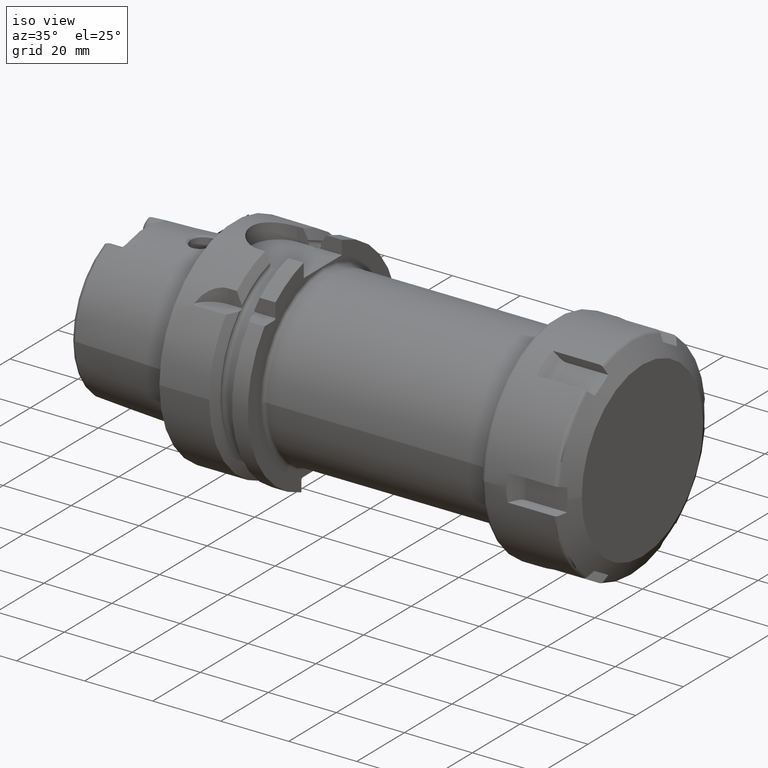
[diagram: clean part render]
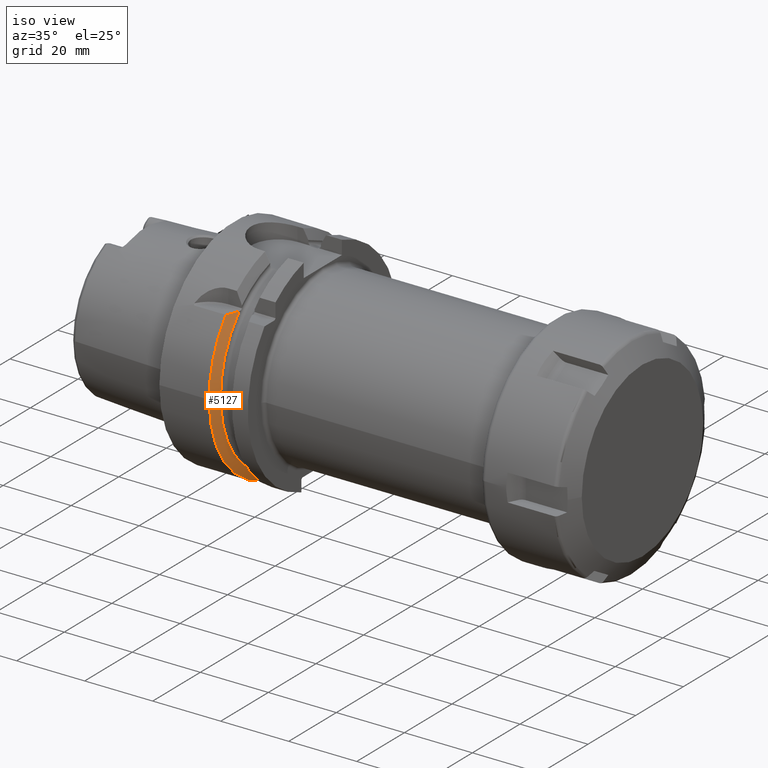
[diagram: same view with one face highlighted and labeled with its STEP entity id]
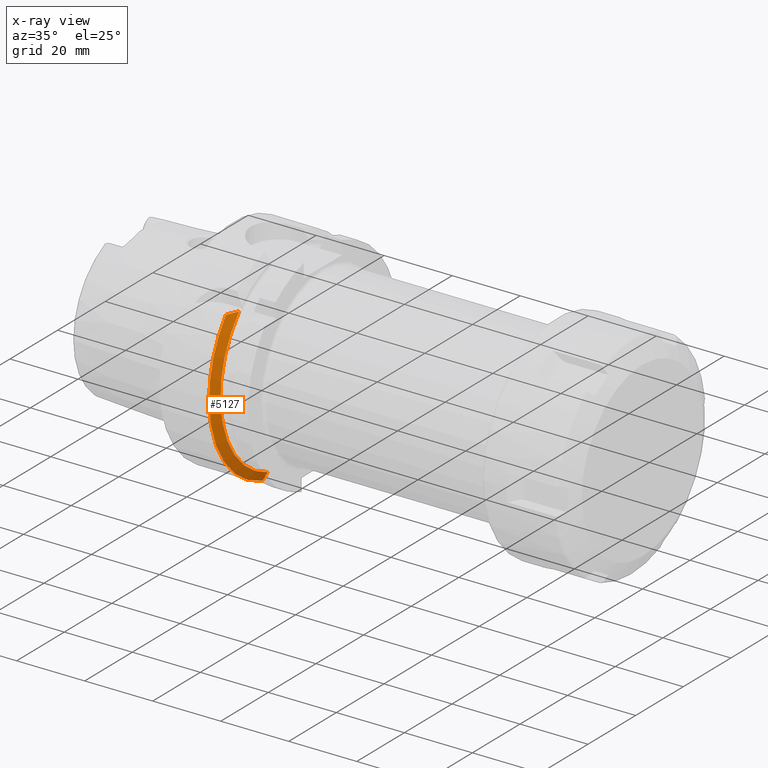
[diagram: x-ray of the same camera — body ghosted, the highlighted face saturated]
A machine part, iso view. The second image highlights one B-rep face of the part: STEP entity #5127.
The next image is the same camera in x-ray: the body ghosted, the highlighted face saturated — about 1% of this face is hidden behind the body in this view.
In plain terms, the highlighted conical surface has half-angle 60 deg.
Its self-contained STEP definition (entity closure, byte-faithful):
#1106=CARTESIAN_POINT('',(1.462250092524E1,0.E0,0.E0));
#1107=DIRECTION('',(1.E0,0.E0,0.E0));
#1108=DIRECTION('',(0.E0,-7.764663384879E-1,6.301587301587E-1));
#1109=AXIS2_PLACEMENT_3D('',#1106,#1107,#1108);
#1667=CARTESIAN_POINT('',(1.462250092524E1,0.E0,0.E0));
#1668=DIRECTION('',(1.E0,0.E0,0.E0));
#1669=DIRECTION('',(0.E0,-1.E0,0.E0));
#1670=AXIS2_PLACEMENT_3D('',#1667,#1668,#1669);
#1918=CARTESIAN_POINT('',(1.6125E1,-2.100115501712E1,1.985E1));
#1919=CARTESIAN_POINT('',(1.597384221917E1,-2.136140971936E1,1.985E1));
#1920=CARTESIAN_POINT('',(1.566115300621E1,-2.209786160622E1,1.985E1));
#1921=CARTESIAN_POINT('',(1.516255881786E1,-2.324577082409E1,1.985E1));
#1922=CARTESIAN_POINT('',(1.480632619355E1,-2.404863363206E1,1.985E1));
#1923=CARTESIAN_POINT('',(1.462250092524E1,-2.445868966237E1,1.985E1));
#1925=CARTESIAN_POINT('',(1.6125E1,0.E0,0.E0));
#1926=DIRECTION('',(1.E0,0.E0,0.E0));
#1927=DIRECTION('',(0.E0,-7.267440361428E-1,6.869083679290E-1));
#1928=AXIS2_PLACEMENT_3D('',#1925,#1926,#1927);
#1930=CARTESIAN_POINT('',(1.6125E1,-9.0175E0,-2.745461174016E1));
#1931=CARTESIAN_POINT('',(1.596600098125E1,-9.0175E0,-2.774448053791E1));
#1932=CARTESIAN_POINT('',(1.564270948849E1,-9.0175E0,-2.833297398512E1));
#1933=CARTESIAN_POINT('',(1.514210518984E1,-9.0175E0,-2.924158789478E1));
#1934=CARTESIAN_POINT('',(1.479749126019E1,-9.0175E0,-2.986536377611E1));
#1935=CARTESIAN_POINT('',(1.462250092524E1,-9.0175E0,-3.018169467989E1));
#2813=CARTESIAN_POINT('',(1.462250092524E1,-3.15E1,0.E0));
#2814=VERTEX_POINT('',#2813);
#2973=CARTESIAN_POINT('',(1.462250092524E1,-9.0175E0,-3.018169467989E1));
#2974=VERTEX_POINT('',#2973);
#2979=CARTESIAN_POINT('',(1.6125E1,-9.0175E0,-2.745461174016E1));
#2981=VERTEX_POINT('',#2979);
#3015=CARTESIAN_POINT('',(1.6125E1,-2.100115501712E1,1.985E1));
#3017=VERTEX_POINT('',#3015);
#3031=VERTEX_POINT('',#1923);
#5115=CARTESIAN_POINT('',(1.537375046262E1,0.E0,0.E0));
#5116=DIRECTION('',(-1.E0,0.E0,0.E0));
#5117=DIRECTION('',(0.E0,1.E0,0.E0));
#5118=AXIS2_PLACEMENT_3D('',#5115,#5116,#5117);
#5119=CONICAL_SURFACE('',#5118,3.019879763210E1,6.E1);
#5120=ORIENTED_EDGE('',*,*,#4880,.F.);
#5121=ORIENTED_EDGE('',*,*,#4698,.T.);
#5122=ORIENTED_EDGE('',*,*,#5032,.T.);
#5123=ORIENTED_EDGE('',*,*,#4814,.F.);
#5124=ORIENTED_EDGE('',*,*,#4335,.F.);
#5125=EDGE_LOOP('',(#5120,#5121,#5122,#5123,#5124));
#5126=FACE_OUTER_BOUND('',#5125,.F.);
#5127=ADVANCED_FACE('',(#5126),#5119,.T.);
#1110=CIRCLE('',#1109,3.15E1);
#1671=CIRCLE('',#1670,3.15E1);
#1924=B_SPLINE_CURVE_WITH_KNOTS('',3,(#1918,#1919,#1920,#1921,#1922,#1923),
.UNSPECIFIED.,.F.,.F.,(4,1,1,4),(0.E0,3.333333333333E-1,6.666666666667E-1,1.E0),
.UNSPECIFIED.);
#1929=CIRCLE('',#1928,2.889759526419E1);
#1936=B_SPLINE_CURVE_WITH_KNOTS('',3,(#1930,#1931,#1932,#1933,#1934,#1935),
.UNSPECIFIED.,.F.,.F.,(4,1,1,4),(0.E0,3.333333333333E-1,6.666666666667E-1,1.E0),
.UNSPECIFIED.);
#4335=EDGE_CURVE('',#3031,#2814,#1110,.T.);
#4698=EDGE_CURVE('',#3017,#2981,#1929,.T.);
#4814=EDGE_CURVE('',#2814,#2974,#1671,.T.);
#4880=EDGE_CURVE('',#3017,#3031,#1924,.T.);
#5032=EDGE_CURVE('',#2981,#2974,#1936,.T.);